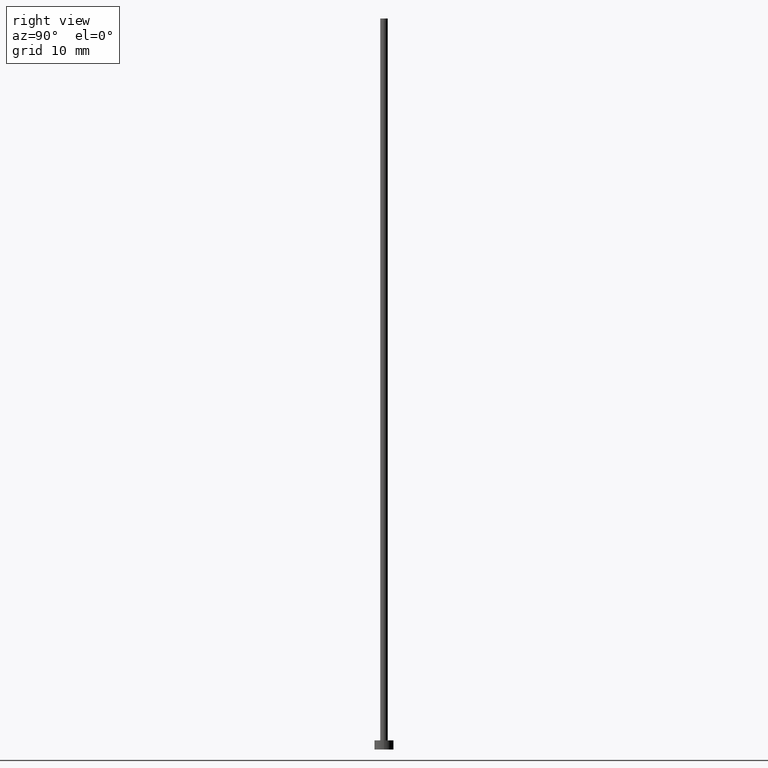
[diagram: clean part render]
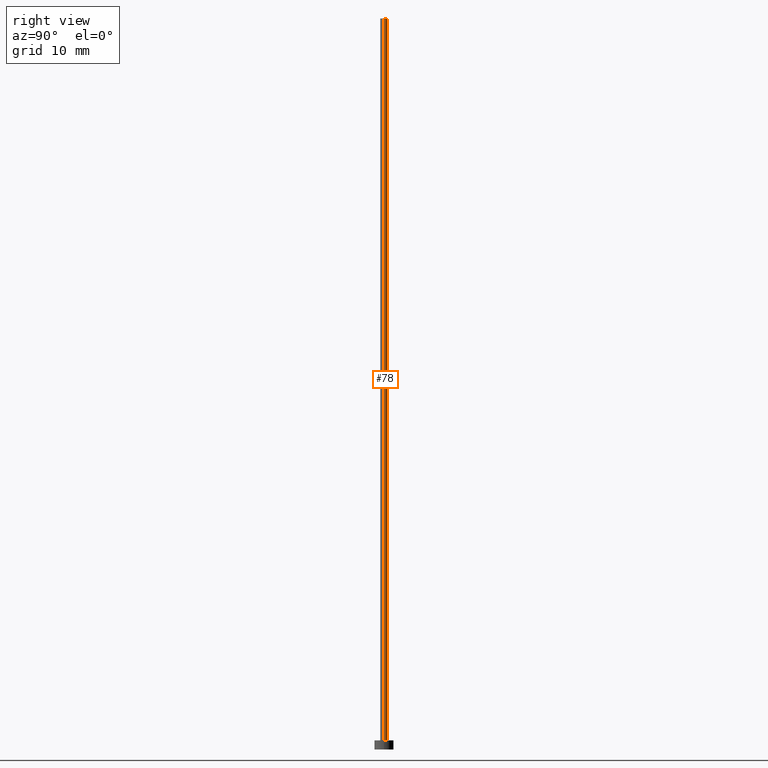
[diagram: same view with one face highlighted and labeled with its STEP entity id]
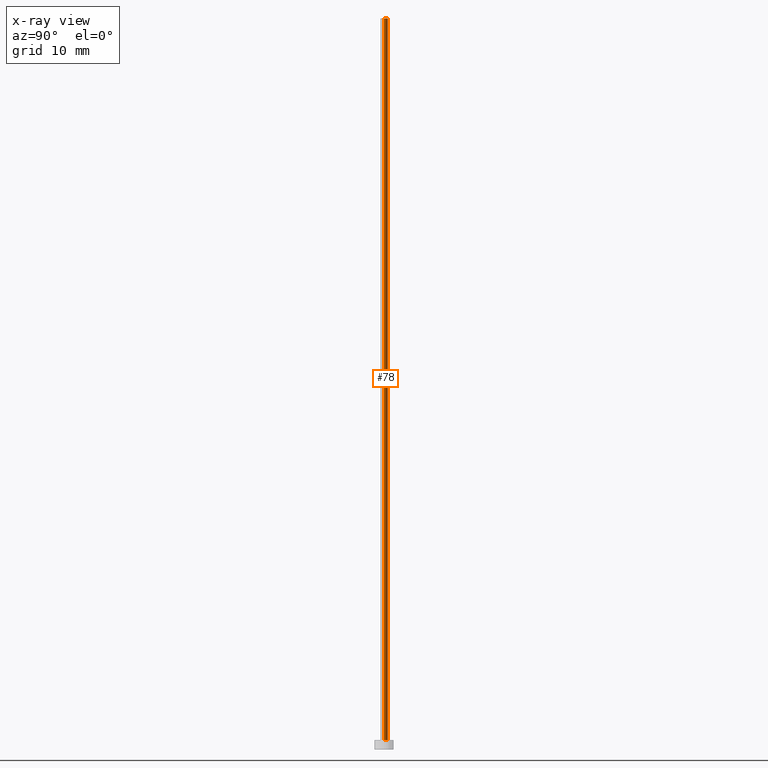
[diagram: x-ray of the same camera — body ghosted, the highlighted face saturated]
A machine part, right view. The second image highlights one B-rep face of the part: STEP entity #78.
The next image is the same camera in x-ray: the body ghosted, the highlighted face saturated — about 0% of this face is hidden behind the body in this view.
In plain terms, the highlighted cylindrical surface (edge-blend (fillet) strip) has radius 0.5 mm, axis along (-0, -0, -1).
Its self-contained STEP definition (entity closure, byte-faithful):
#4 = VERTEX_POINT ( 'NONE', #64 ) ;
#18 = CARTESIAN_POINT ( 'NONE',  ( -0.5000000000000000000, 0.000000000000000000, 96.00000000000000000 ) ) ;
#25 = AXIS2_PLACEMENT_3D ( 'NONE', #214, #180, #155 ) ;
#30 = DIRECTION ( 'NONE',  ( -0.000000000000000000, -0.000000000000000000, -1.000000000000000000 ) ) ;
#37 = CIRCLE ( 'NONE', #25, 0.5000000000000000000 ) ;
#50 = ORIENTED_EDGE ( 'NONE', *, *, #130, .F. ) ;
#60 = CARTESIAN_POINT ( 'NONE',  ( 0.000000000000000000, 0.000000000000000000, 96.00000000000000000 ) ) ;
#64 = CARTESIAN_POINT ( 'NONE',  ( 0.5000000000000000000, 6.123233995736766036E-17, 1.199999999999999956 ) ) ;
#66 = DIRECTION ( 'NONE',  ( -0.000000000000000000, -0.000000000000000000, -1.000000000000000000 ) ) ;
#71 = EDGE_CURVE ( 'NONE', #4, #122, #232, .T. ) ;
#74 = CARTESIAN_POINT ( 'NONE',  ( 0.000000000000000000, 0.000000000000000000, 1.199999999999999956 ) ) ;
#78 = ADVANCED_FACE ( 'NONE', ( #151 ), #212, .T. ) ;
#94 = CARTESIAN_POINT ( 'NONE',  ( 0.5000000000000000000, 6.123233995736766036E-17, 96.00000000000000000 ) ) ;
#102 = AXIS2_PLACEMENT_3D ( 'NONE', #74, #251, #135 ) ;
#112 = CARTESIAN_POINT ( 'NONE',  ( -0.5000000000000000000, 0.000000000000000000, 1.199999999999999956 ) ) ;
#115 = LINE ( 'NONE', #18, #141 ) ;
#122 = VERTEX_POINT ( 'NONE', #112 ) ;
#123 = ORIENTED_EDGE ( 'NONE', *, *, #71, .T. ) ;
#130 = EDGE_CURVE ( 'NONE', #205, #122, #115, .T. ) ;
#135 = DIRECTION ( 'NONE',  ( 1.000000000000000000, 0.000000000000000000, 0.000000000000000000 ) ) ;
#139 = DIRECTION ( 'NONE',  ( -0.000000000000000000, -0.000000000000000000, -1.000000000000000000 ) ) ;
#141 = VECTOR ( 'NONE', #139, 1000.000000000000000 ) ;
#145 = EDGE_CURVE ( 'NONE', #165, #4, #156, .T. ) ;
#151 = FACE_OUTER_BOUND ( 'NONE', #203, .T. ) ;
#155 = DIRECTION ( 'NONE',  ( 1.000000000000000000, 0.000000000000000000, 0.000000000000000000 ) ) ;
#156 = LINE ( 'NONE', #199, #223 ) ;
#157 = AXIS2_PLACEMENT_3D ( 'NONE', #60, #30, #209 ) ;
#160 = CARTESIAN_POINT ( 'NONE',  ( -0.5000000000000000000, 0.000000000000000000, 96.00000000000000000 ) ) ;
#165 = VERTEX_POINT ( 'NONE', #94 ) ;
#180 = DIRECTION ( 'NONE',  ( 0.000000000000000000, 0.000000000000000000, 1.000000000000000000 ) ) ;
#199 = CARTESIAN_POINT ( 'NONE',  ( 0.5000000000000000000, 6.123233995736766036E-17, 96.00000000000000000 ) ) ;
#201 = ORIENTED_EDGE ( 'NONE', *, *, #145, .T. ) ;
#203 = EDGE_LOOP ( 'NONE', ( #240, #201, #123, #50 ) ) ;
#205 = VERTEX_POINT ( 'NONE', #160 ) ;
#209 = DIRECTION ( 'NONE',  ( -1.000000000000000000, 0.000000000000000000, 0.000000000000000000 ) ) ;
#212 = CYLINDRICAL_SURFACE ( 'NONE', #157, 0.5000000000000000000 ) ;
#214 = CARTESIAN_POINT ( 'NONE',  ( 0.000000000000000000, 0.000000000000000000, 96.00000000000000000 ) ) ;
#223 = VECTOR ( 'NONE', #66, 1000.000000000000000 ) ;
#232 = CIRCLE ( 'NONE', #102, 0.5000000000000000000 ) ;
#240 = ORIENTED_EDGE ( 'NONE', *, *, #245, .F. ) ;
#245 = EDGE_CURVE ( 'NONE', #165, #205, #37, .T. ) ;
#251 = DIRECTION ( 'NONE',  ( 0.000000000000000000, 0.000000000000000000, 1.000000000000000000 ) ) ;